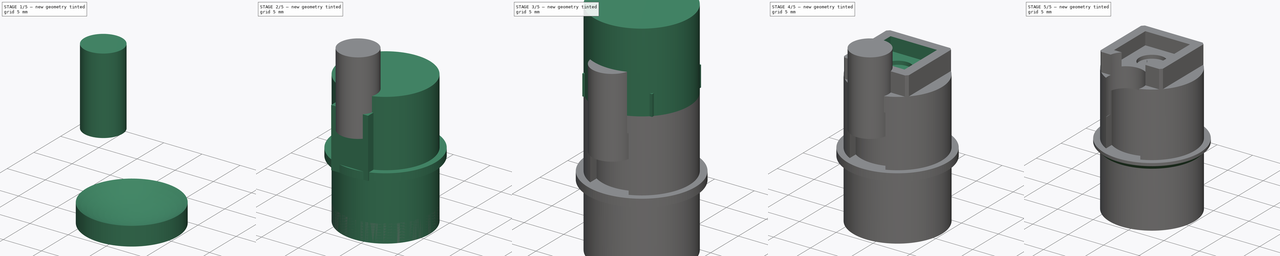
[diagram: build sequence overview — one tinted view per stage of 5, left to right]
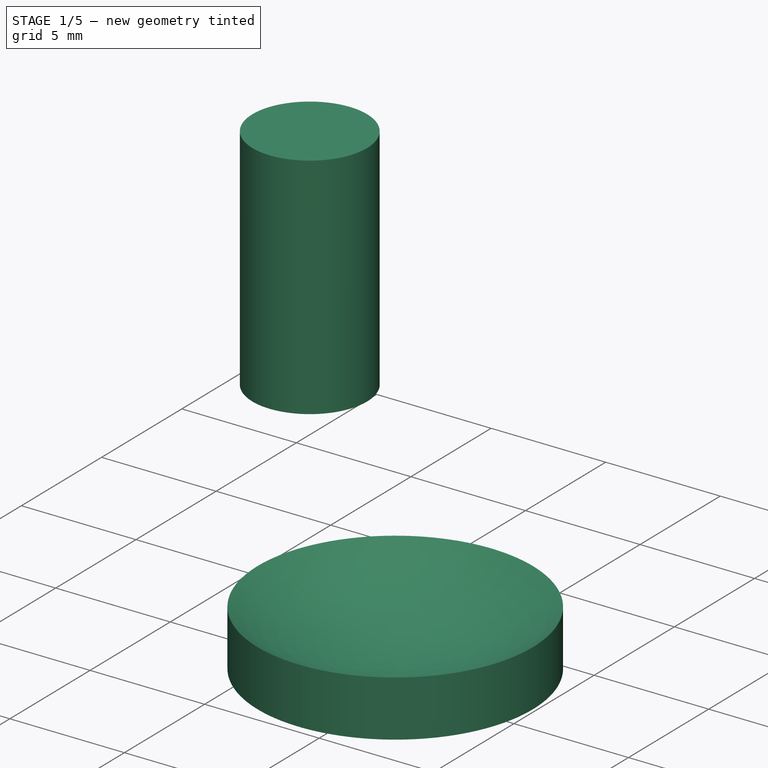
[diagram: stage 1 of 5 — iso view after this stage's code; geometry added in this stage tinted green]
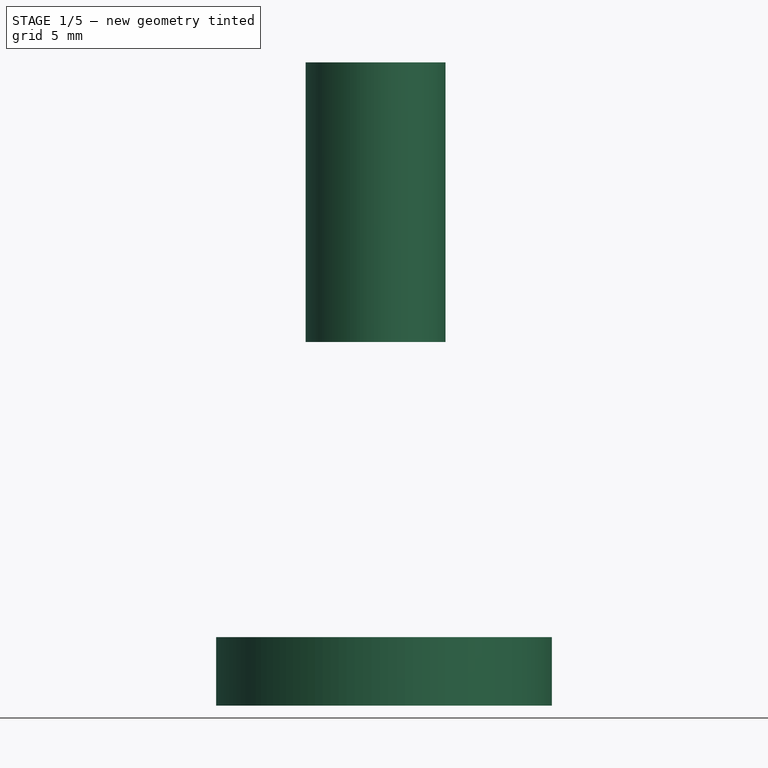
[diagram: stage 1 of 5 — front view after this stage's code; geometry added in this stage tinted green]
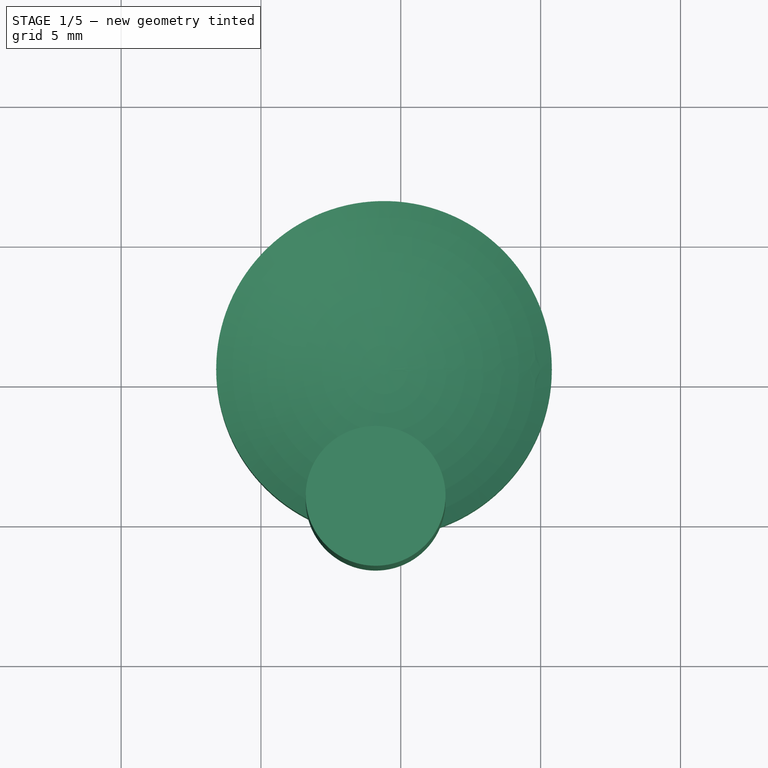
[diagram: stage 1 of 5 — top view after this stage's code; geometry added in this stage tinted green]
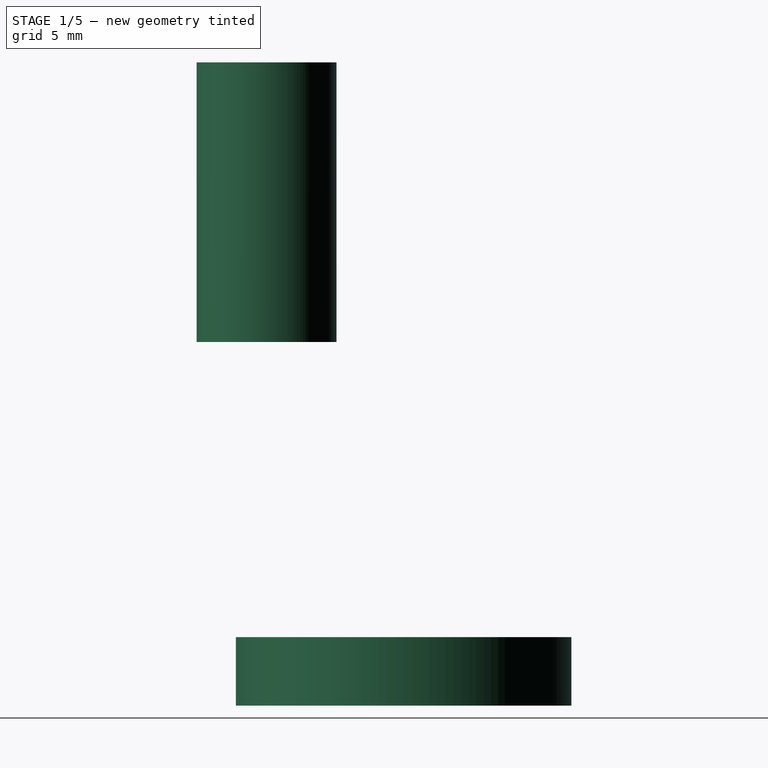
[diagram: stage 1 of 5 — right view after this stage's code; geometry added in this stage tinted green]
FCSTD DOCUMENT  (FreeCAD 0.16R6712 (Git))
Label: button
License: All rights reserved
LicenseURL: http://en.wikipedia.org/wiki/All_rights_reserved
objects: Sketcher::SketchObject×8, PartDesign::Pad×5, PartDesign::Pocket×3, Part::Cut×3, Part::MultiFuse×3, Part::Cylinder×2, Part::MultiCommon×1, Part::Sphere×1, PartDesign::Chamfer×1
note: 35 computed .brp shape members not serialized (recipe doc carries the construction recipe); baked Part::Feature solids carry a one-line shape summary decoded from their .brp

FEATURE [Part::Cylinder] Cylinder
  Angle = 360
  Height = 3
  Placement = pos=(4.4,-4.4,-18) rot=(0,0,1;0rad)
  Radius = 6
FEATURE [Part::Sphere] Sphere
  Angle1 = -89
  Angle2 = 90
  Angle3 = 360
  Placement = pos=(4.4,-4.4,-7.3) rot=(0,0,1;0rad)
  Radius = 10.2
FEATURE [Part::Cut] Cut001
  Base = -> Cylinder
  Tool = -> Sphere
FEATURE [Part::Cylinder] Cylinder001
  Angle = 360
  Height = 10
  Placement = pos=(4.1,-9.3,-5) rot=(0,0,1;0rad)
  Radius = 2.5
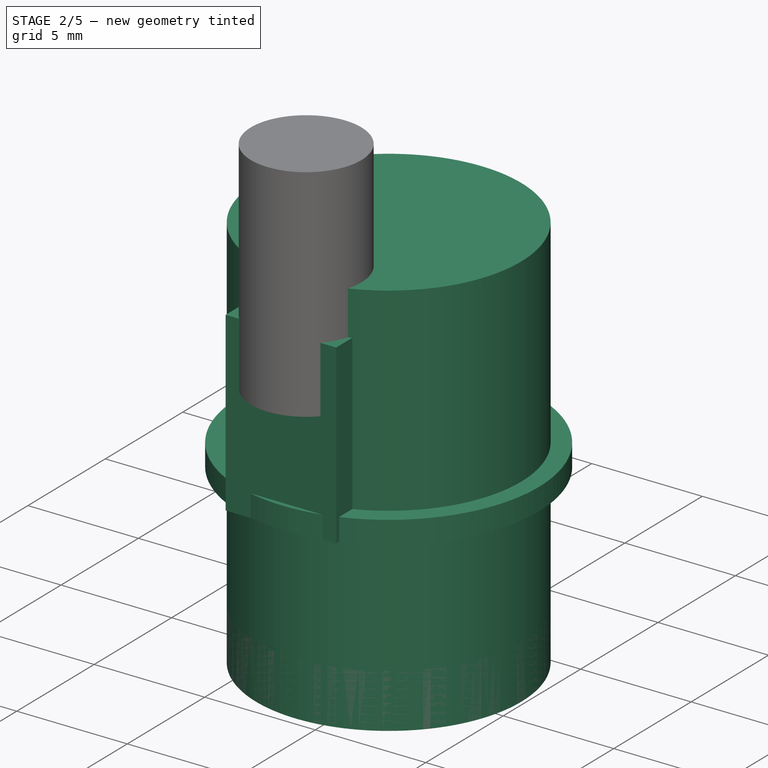
[diagram: stage 2 of 5 — iso view after this stage's code; geometry added in this stage tinted green]
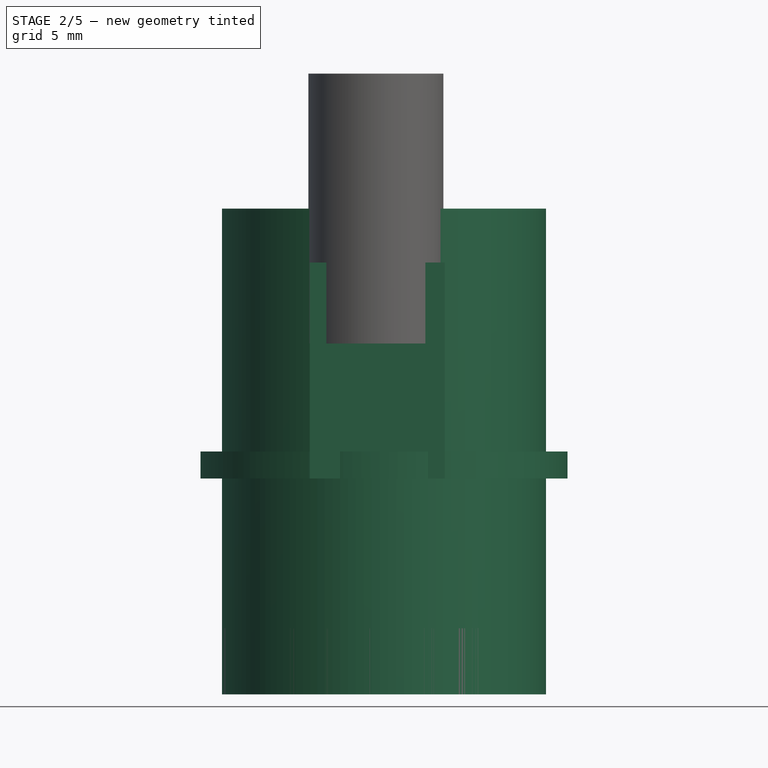
[diagram: stage 2 of 5 — front view after this stage's code; geometry added in this stage tinted green]
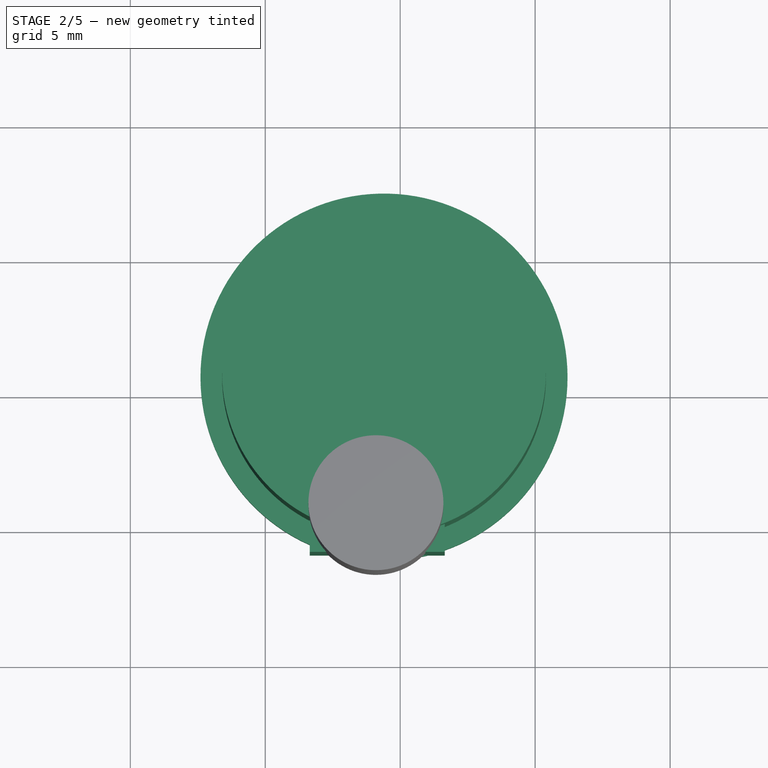
[diagram: stage 2 of 5 — top view after this stage's code; geometry added in this stage tinted green]
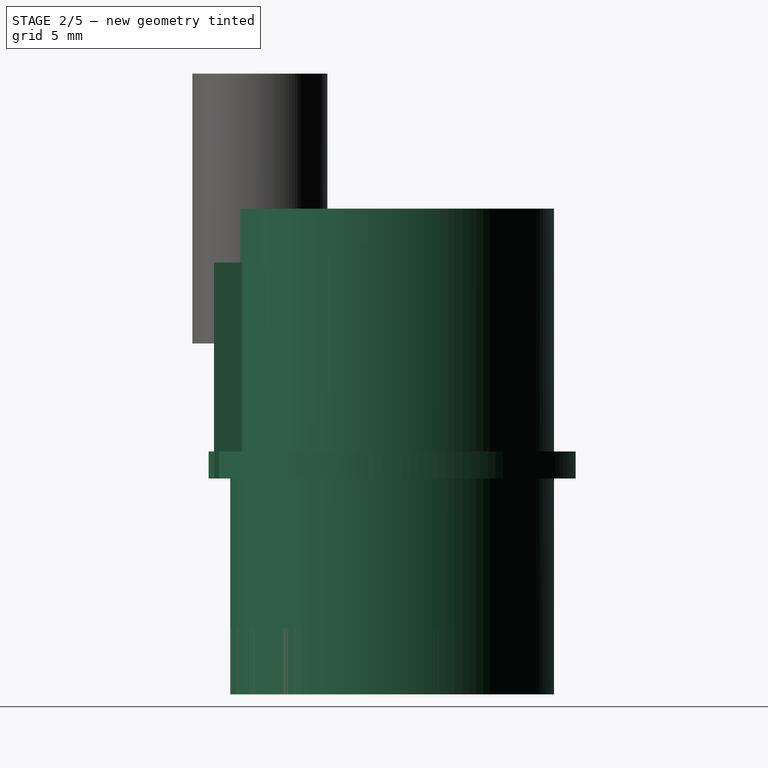
[diagram: stage 2 of 5 — right view after this stage's code; geometry added in this stage tinted green]
FEATURE [Sketcher::SketchObject] Sketch004
  sketch-geometry (5):
    g0: LineSegment [constr] StartX=0 StartY=0 StartZ=0 EndX=4.4 EndY=0 EndZ=0
    g1: LineSegment [constr] StartX=4.4 StartY=0 StartZ=0 EndX=4.4 EndY=-4.4 EndZ=0
    g2: LineSegment [constr] StartX=4.4 StartY=-4.4 StartZ=0 EndX=0 EndY=-4.4 EndZ=0
    g3: LineSegment [constr] StartX=0 StartY=-4.4 StartZ=0 EndX=0 EndY=0 EndZ=0
    g4: Circle CenterX=4.4 CenterY=-4.4 CenterZ=0 NormalX=0 NormalY=0 NormalZ=1 Radius=6
  constraints (13):
    c: Coincident(g0,g1)
    c: Coincident(g1,g2)
    c: Coincident(g2,g3)
    c: Coincident(g3,g0)
    c: Horizontal(g0)
    c: Horizontal(g2)
    c: Vertical(g1)
    c: Vertical(g3)
    c: Coincident(g0,g-1)
    c: Equal(g3,g0)
    c: DistanceX(g0,g0) = 4.4
    c: Coincident(g4,g1)
    c: Radius(g4) = 6
FEATURE [PartDesign::Pad] Pad002
  Length = 18
  Length2 = 100
  Reversed = true
  Sketch = -> Sketch004
  Type = 0
FEATURE [Sketcher::SketchObject] Sketch005
  ExternalGeometry = -> [Pad002]
  Placement = pos=(0,0,-18) rot=(1,0,0;3.14159rad)
  Support = -> Pad002 [Face3]
  sketch-geometry (1):
    g0: Circle CenterX=4.4 CenterY=4.4 CenterZ=0 NormalX=0 NormalY=0 NormalZ=1 Radius=5
  constraints (2):
    c: Coincident(g0,g-3)
    c: Radius(g0) = 5
FEATURE [PartDesign::Pocket] Pocket002
  Length = 16
  Sketch = -> Sketch005
  Type = 0
FEATURE [Sketcher::SketchObject] Sketch006
  Placement = pos=(0,-1,-2) rot=(1,0,0;1.5708rad)
  sketch-geometry (5):
    g0: LineSegment StartX=6.65 StartY=-8 StartZ=0 EndX=1.65 EndY=-8 EndZ=0
    g1: LineSegment StartX=1.65 StartY=-8 StartZ=0 EndX=1.65 EndY=0 EndZ=0
    g2: LineSegment StartX=1.65 StartY=0 StartZ=0 EndX=6.65 EndY=0 EndZ=0
    g3: LineSegment StartX=6.65 StartY=0 StartZ=0 EndX=6.65 EndY=-8 EndZ=0
    g4: LineSegment [constr] StartX=0 StartY=0 StartZ=0 EndX=8.8 EndY=0 EndZ=0
  constraints (15):
    c: Coincident(g0,g1)
    c: Coincident(g1,g2)
    c: Coincident(g2,g3)
    c: Coincident(g3,g0)
    c: Horizontal(g0)
    c: Horizontal(g2)
    c: Vertical(g1)
    c: Vertical(g3)
    c: DistanceX(g0,g0) = 5
    c: DistanceX(g-1,g0) = 1.65
    c: Coincident(g4,g-1)
    c: PointOnObject(g4,g-1)
    c: DistanceX(g4,g4) = 8.8
    c: PointOnObject(g4,g2)
    c: DistanceY(g1,g1) = 8
FEATURE [PartDesign::Pad] Pad003
  Length = 10
  Length2 = 100
  Placement = pos=(0,-1,-2) rot=(1,0,0;1.5708rad)
  Sketch = -> Sketch006
  Type = 0
FEATURE [Sketcher::SketchObject] Sketch007
  Placement = pos=(0,0,-10) rot=(0,0,1;0rad)
  sketch-geometry (2):
    g0: Circle CenterX=4.4 CenterY=-4.4 CenterZ=0 NormalX=0 NormalY=0 NormalZ=1 Radius=6.8
    g1: Circle CenterX=4.4 CenterY=-4.4 CenterZ=0 NormalX=0 NormalY=0 NormalZ=1 Radius=5
  constraints (5):
    c: Coincident(g1,g0)
    c: Radius(g1) = 5
    c: Radius(g0) = 6.8
    c: DistanceX(g-1,g0) = 4.4
    c: DistanceY(g0,g-1) = 4.4
FEATURE [PartDesign::Pad] Pad004
  Length = 1
  Length2 = 100
  Placement = pos=(0,0,-10) rot=(0,0,1;0rad)
  Sketch = -> Sketch007
  Type = 0
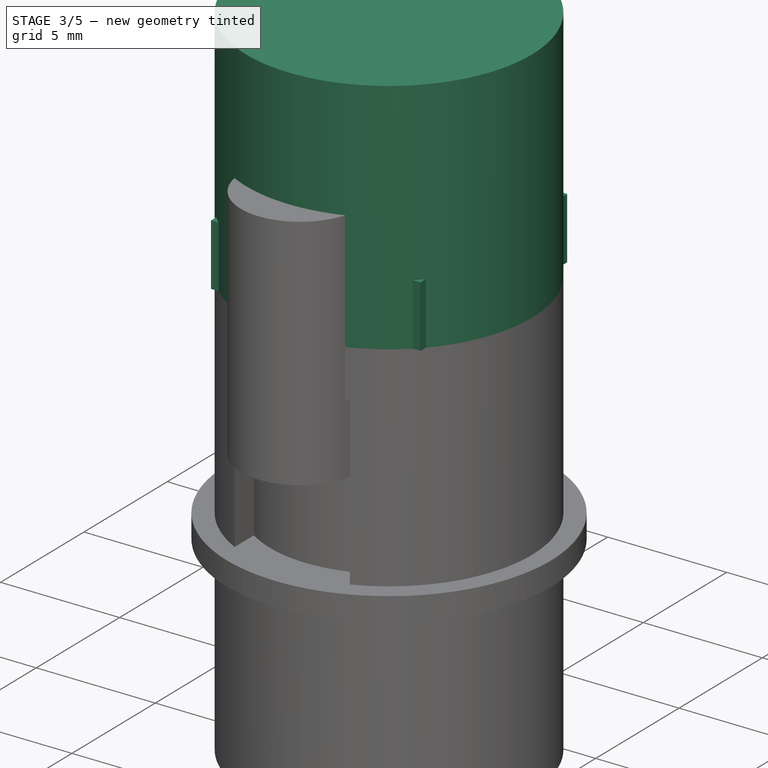
[diagram: stage 3 of 5 — iso view after this stage's code; geometry added in this stage tinted green]
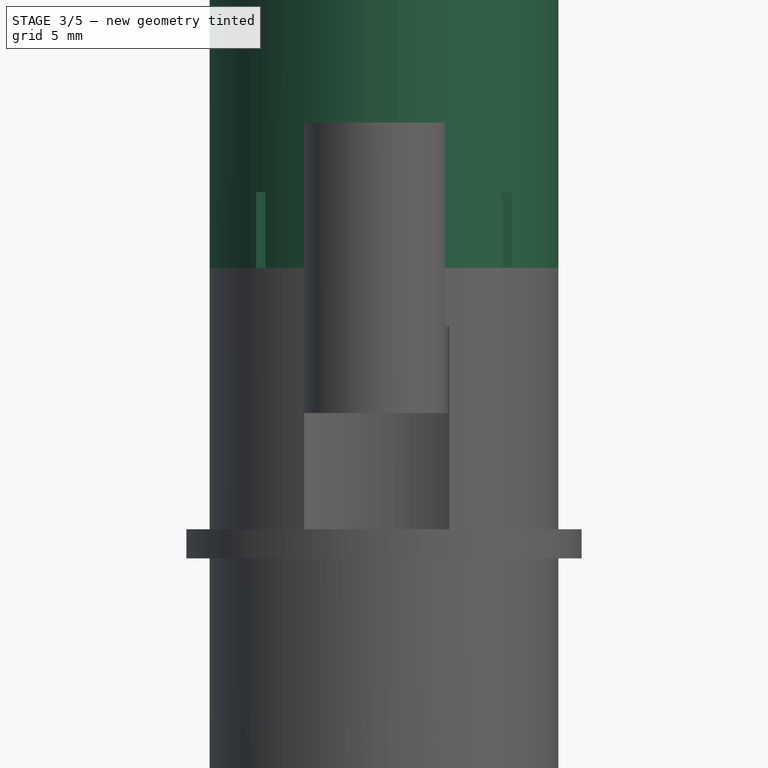
[diagram: stage 3 of 5 — front view after this stage's code; geometry added in this stage tinted green]
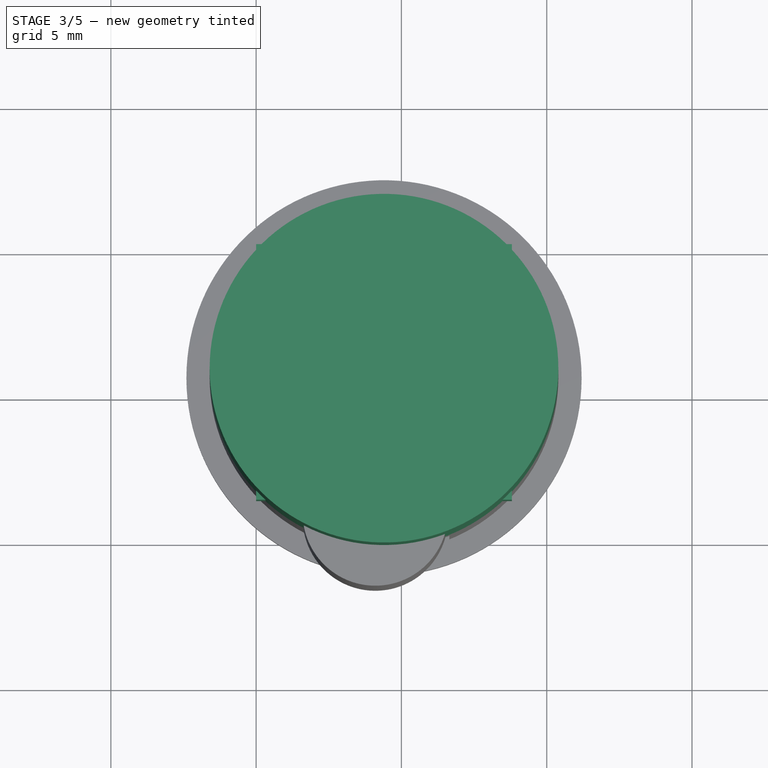
[diagram: stage 3 of 5 — top view after this stage's code; geometry added in this stage tinted green]
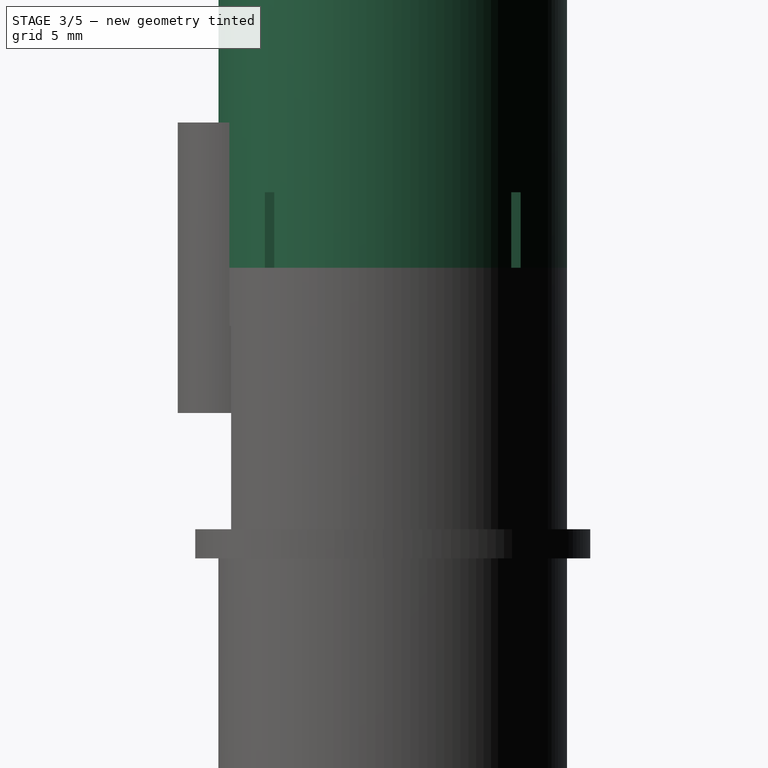
[diagram: stage 3 of 5 — right view after this stage's code; geometry added in this stage tinted green]
FEATURE [Sketcher::SketchObject] Sketch
  sketch-geometry (4):
    g0: LineSegment StartX=0 StartY=0 StartZ=0 EndX=8.8 EndY=0 EndZ=0
    g1: LineSegment StartX=8.8 StartY=0 StartZ=0 EndX=8.8 EndY=-8.8 EndZ=0
    g2: LineSegment StartX=8.8 StartY=-8.8 StartZ=0 EndX=0 EndY=-8.8 EndZ=0
    g3: LineSegment StartX=0 StartY=-8.8 StartZ=0 EndX=0 EndY=0 EndZ=0
  constraints (11):
    c: Coincident(g0,g1)
    c: Coincident(g1,g2)
    c: Coincident(g2,g3)
    c: Coincident(g3,g0)
    c: Horizontal(g0)
    c: Horizontal(g2)
    c: Vertical(g1)
    c: Vertical(g3)
    c: Coincident(g0,g-1)
    c: DistanceY(g3,g3) = 8.8
    c: Equal(g0,g3)
FEATURE [PartDesign::Pad] Pad
  Length = 2.6
  Length2 = 100
  Sketch = -> Sketch
  Type = 0
FEATURE [Sketcher::SketchObject] Sketch003
  sketch-geometry (1):
    g0: Circle CenterX=4.4 CenterY=-4.4 CenterZ=0 NormalX=0 NormalY=0 NormalZ=1 Radius=6
  constraints (3):
    c: Radius(g0) = 6
    c: DistanceY(g0,g-1) = 4.4
    c: DistanceX(g-1,g0) = 4.4
FEATURE [PartDesign::Pad] Pad001
  Length = 10
  Length2 = 100
  Sketch = -> Sketch003
  Type = 0
FEATURE [Part::Cut] Cut
  Base = -> Pocket002
  Tool = -> Pad003
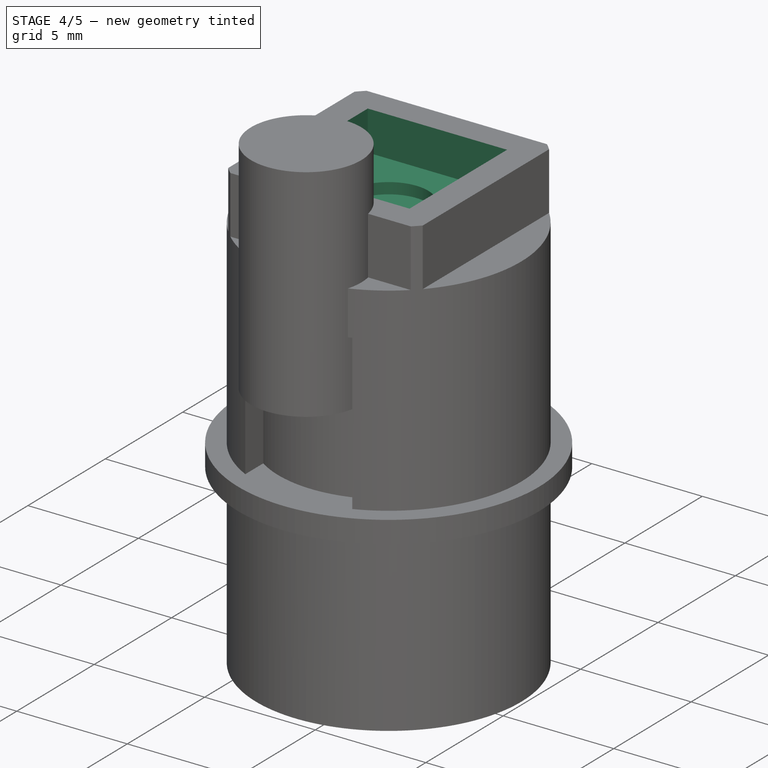
[diagram: stage 4 of 5 — iso view after this stage's code; geometry added in this stage tinted green]
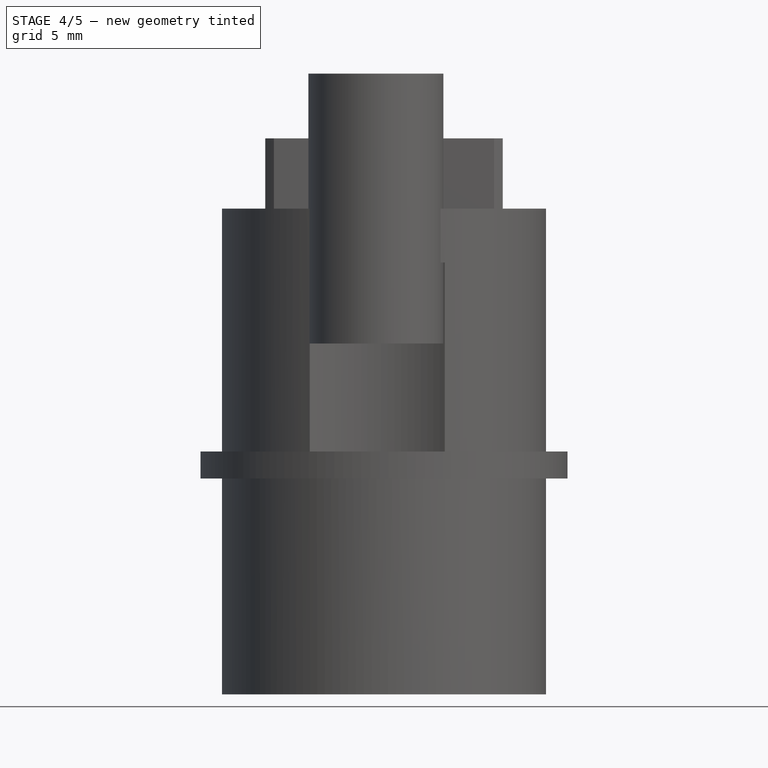
[diagram: stage 4 of 5 — front view after this stage's code; geometry added in this stage tinted green]
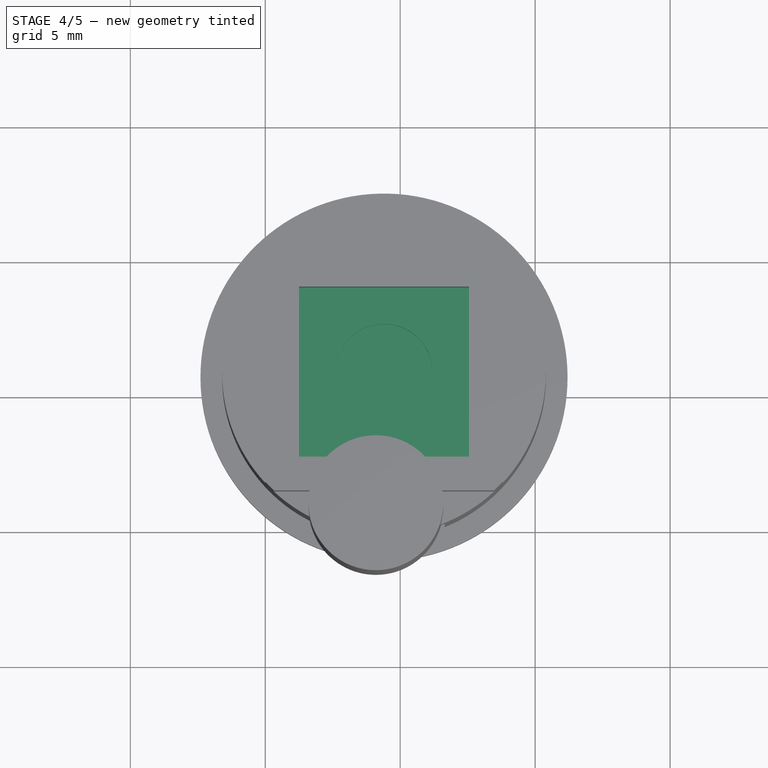
[diagram: stage 4 of 5 — top view after this stage's code; geometry added in this stage tinted green]
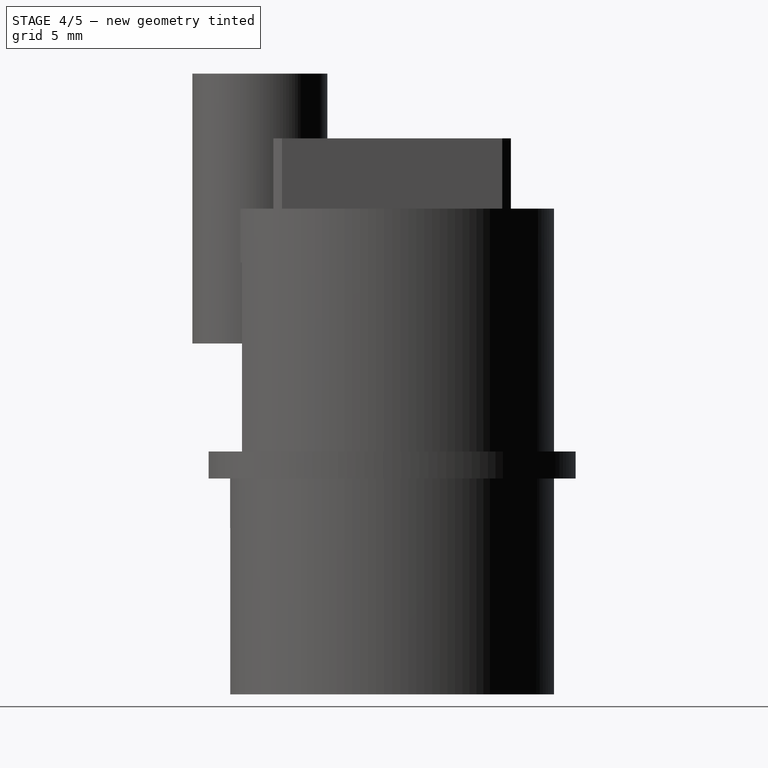
[diagram: stage 4 of 5 — right view after this stage's code; geometry added in this stage tinted green]
FEATURE [Sketcher::SketchObject] Sketch001
  Placement = pos=(0,0,2.6) rot=(0,0,1;0rad)
  Support = -> Pad [Face6]
  sketch-geometry (4):
    g0: LineSegment StartX=1.25 StartY=-1.25 StartZ=0 EndX=7.55 EndY=-1.25 EndZ=0
    g1: LineSegment StartX=7.55 StartY=-1.25 StartZ=0 EndX=7.55 EndY=-7.55 EndZ=0
    g2: LineSegment StartX=7.55 StartY=-7.55 StartZ=0 EndX=1.25 EndY=-7.55 EndZ=0
    g3: LineSegment StartX=1.25 StartY=-7.55 StartZ=0 EndX=1.25 EndY=-1.25 EndZ=0
  constraints (12):
    c: Coincident(g0,g1)
    c: Coincident(g1,g2)
    c: Coincident(g2,g3)
    c: Coincident(g3,g0)
    c: Horizontal(g0)
    c: Horizontal(g2)
    c: Vertical(g1)
    c: Vertical(g3)
    c: Equal(g0,g3)
    c: DistanceX(g0,g0) = 6.3
    c: DistanceX(g-1,g0) = 1.25
    c: DistanceY(g0,g-1) = 1.25
FEATURE [PartDesign::Pocket] Pocket
  Length = 1.8
  Sketch = -> Sketch001
  Type = 0
FEATURE [Sketcher::SketchObject] Sketch002
  ExternalGeometry = -> [Pocket]
  Placement = pos=(0,0,0.8) rot=(0,0,1;0rad)
  Support = -> Pocket [Face11]
  sketch-geometry (3):
    g0: LineSegment [constr] StartX=7.55 StartY=-7.55 StartZ=0 EndX=1.25 EndY=-1.25 EndZ=0
    g1: LineSegment [constr] StartX=7.55 StartY=-1.25 StartZ=0 EndX=1.25 EndY=-7.55 EndZ=0
    g2: Circle CenterX=4.4 CenterY=-4.4 CenterZ=0 NormalX=0 NormalY=0 NormalZ=1 Radius=1.8
  constraints (7):
    c: Coincident(g0,g-5)
    c: Coincident(g0,g-4)
    c: Coincident(g1,g-3)
    c: Coincident(g1,g-5)
    c: PointOnObject(g2,g0)
    c: PointOnObject(g2,g1)
    c: Radius(g2) = 1.8
FEATURE [PartDesign::Pocket] Pocket001
  Length = 0.5
  Sketch = -> Sketch002
  Type = 0
FEATURE [Part::MultiCommon] Common
  Shapes = -> [Pocket001,Pad001]
FEATURE [Part::MultiFuse] Fusion
  Shapes = -> [Common,Cut]
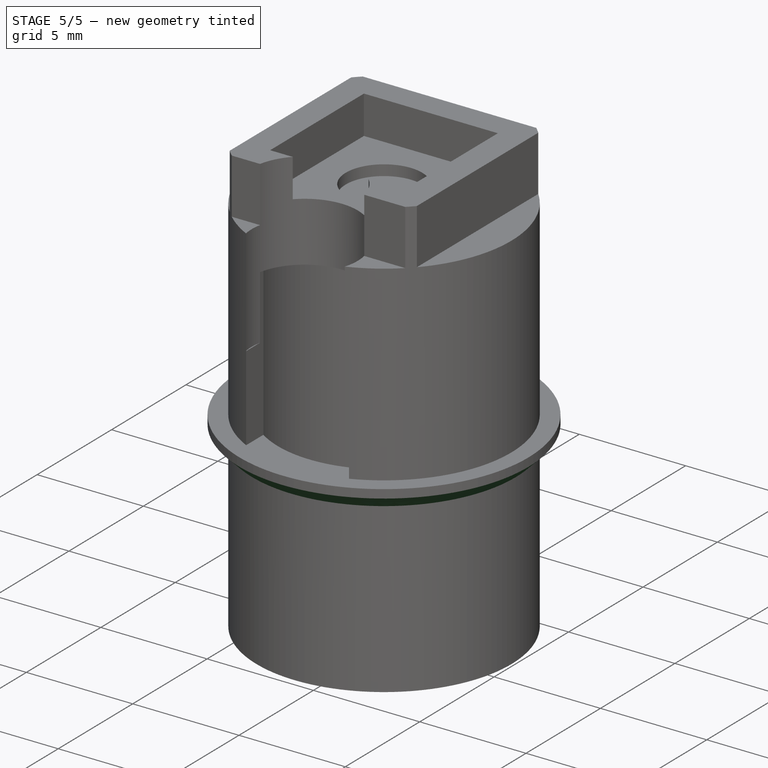
[diagram: stage 5 of 5 — iso view after this stage's code; geometry added in this stage tinted green]
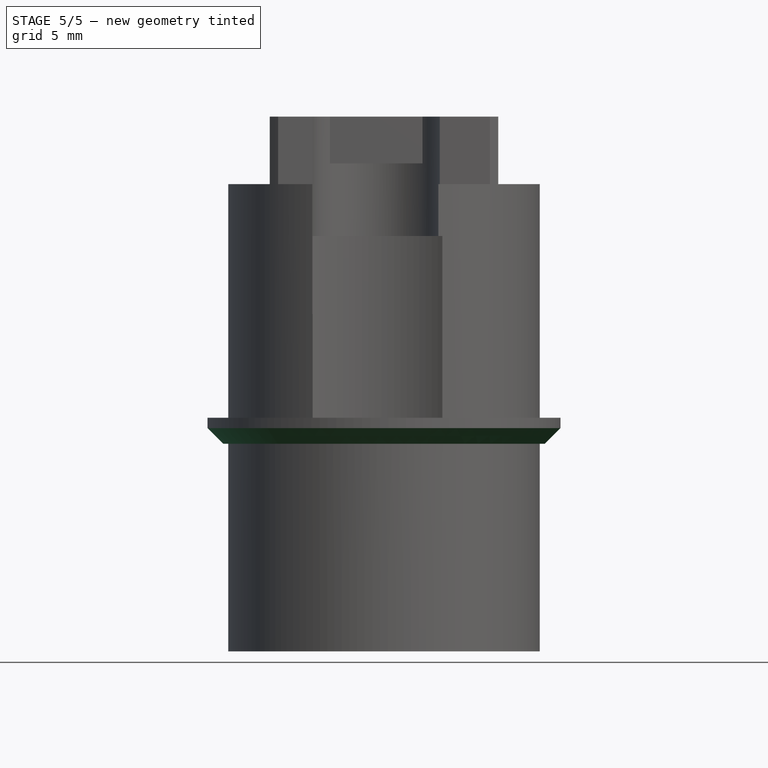
[diagram: stage 5 of 5 — front view after this stage's code; geometry added in this stage tinted green]
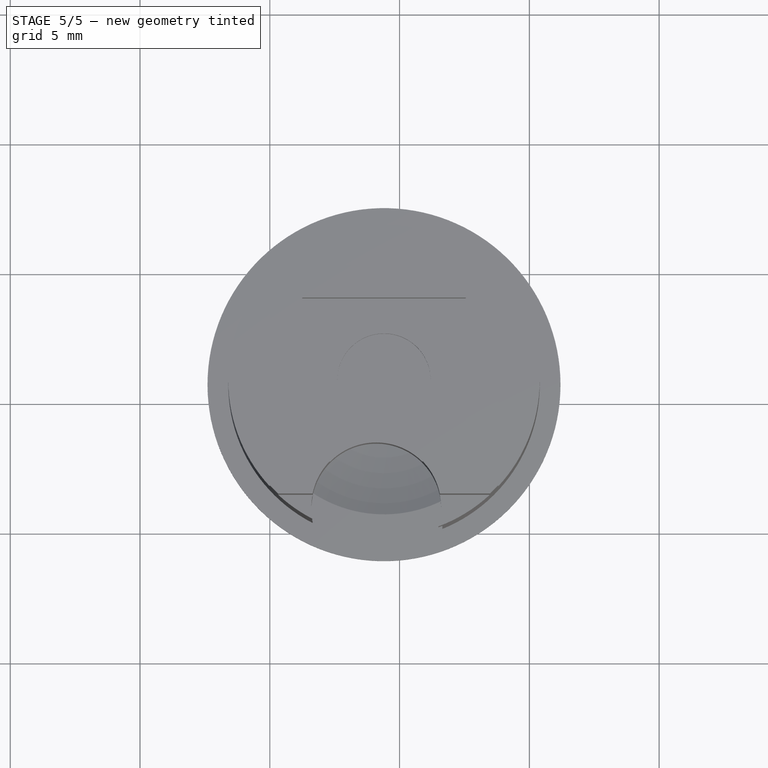
[diagram: stage 5 of 5 — top view after this stage's code; geometry added in this stage tinted green]
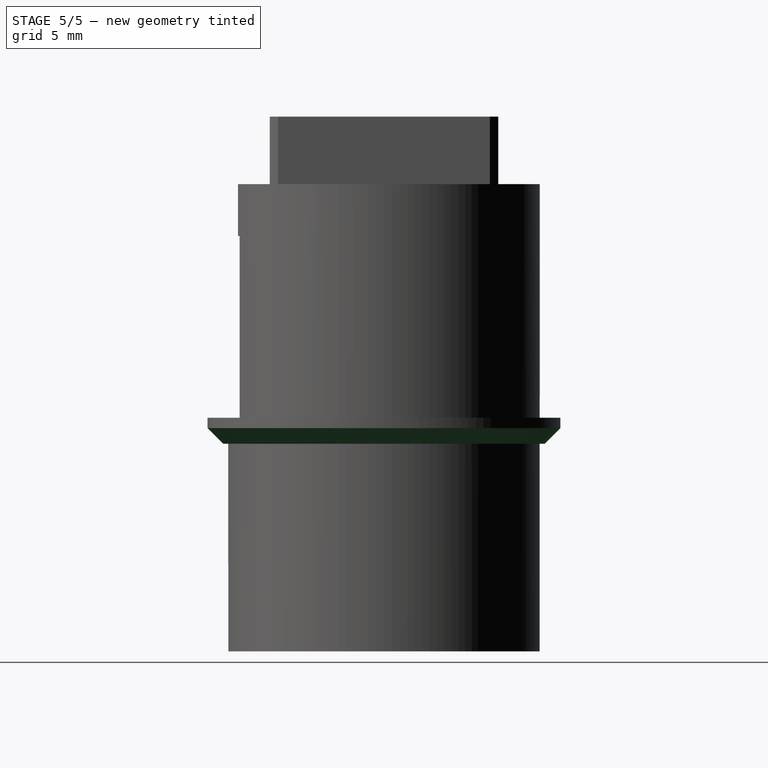
[diagram: stage 5 of 5 — right view after this stage's code; geometry added in this stage tinted green]
FEATURE [Part::MultiFuse] Fusion001
  Shapes = -> [Fusion,Pad004]
FEATURE [Part::MultiFuse] Fusion002
  Shapes = -> [Fusion001,Cut001]
FEATURE [PartDesign::Chamfer] Chamfer
  Base = -> Fusion002 [Edge2]
  Size = 0.6
FEATURE [Part::Cut] Cut002
  Base = -> Chamfer
  Tool = -> Cylinder001
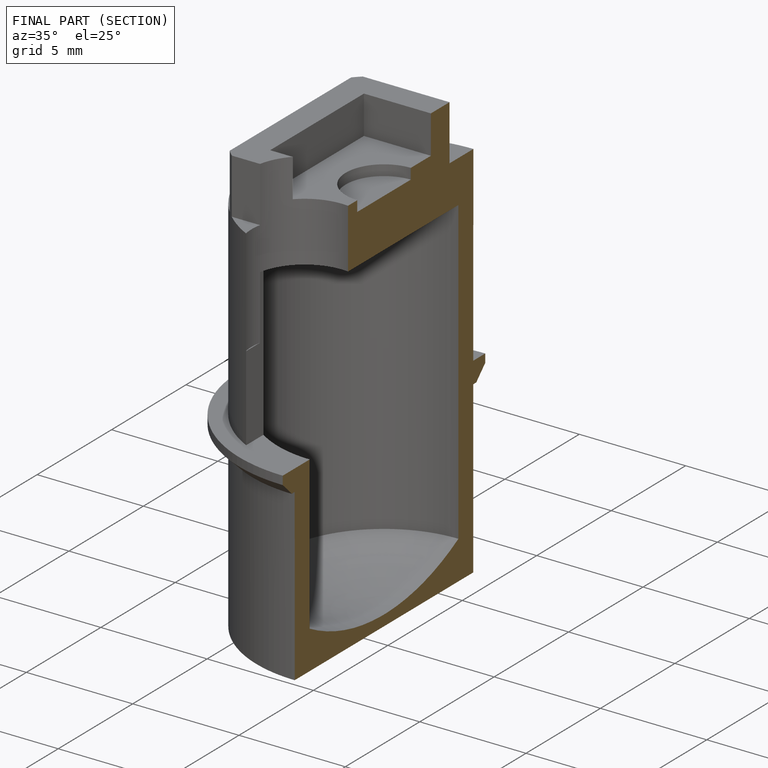
[diagram: finished part — half-section view (interior)]
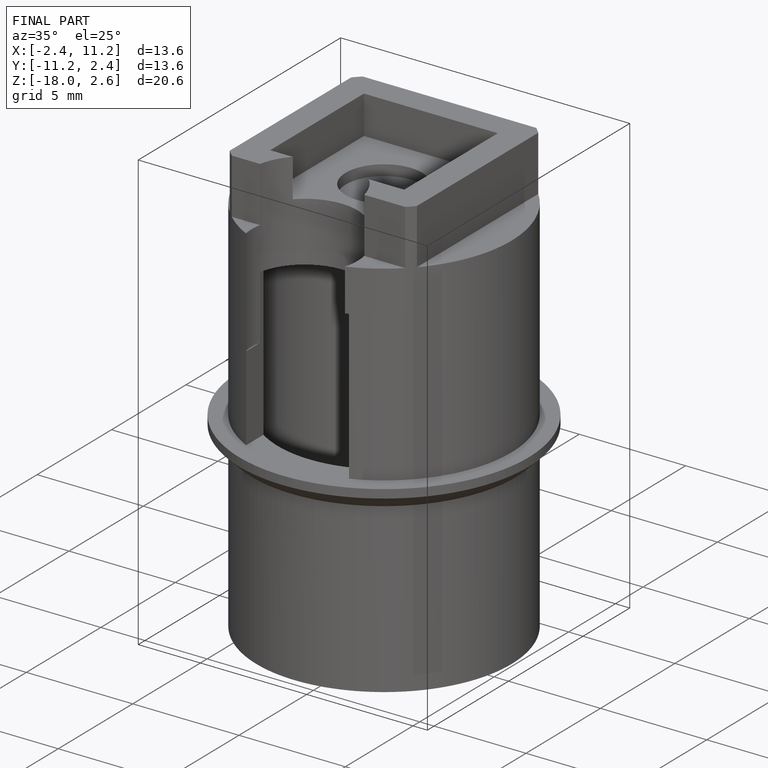
[diagram: finished part — iso view with bounding-box wireframe]
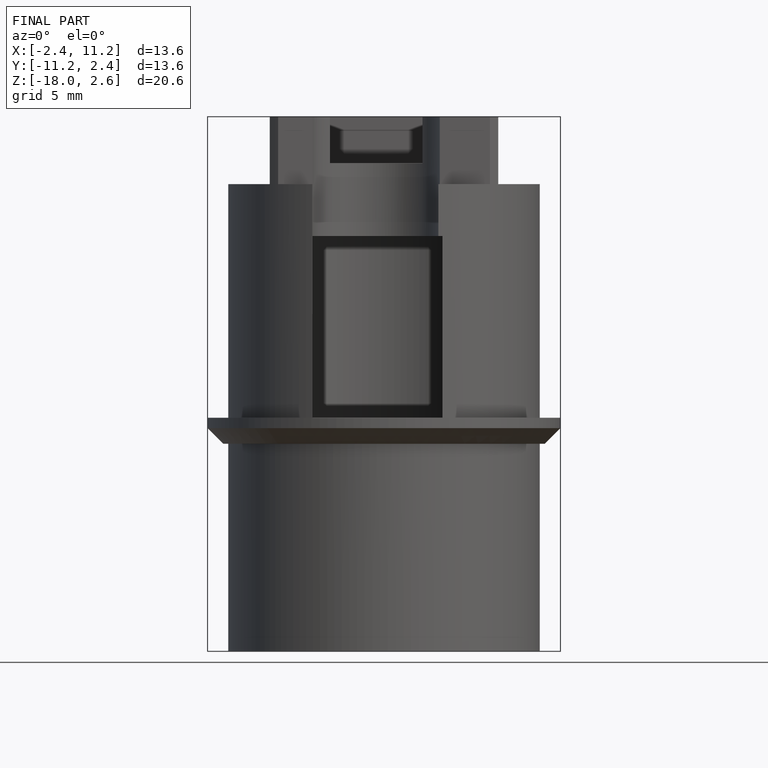
[diagram: finished part — front view with bounding-box wireframe]
